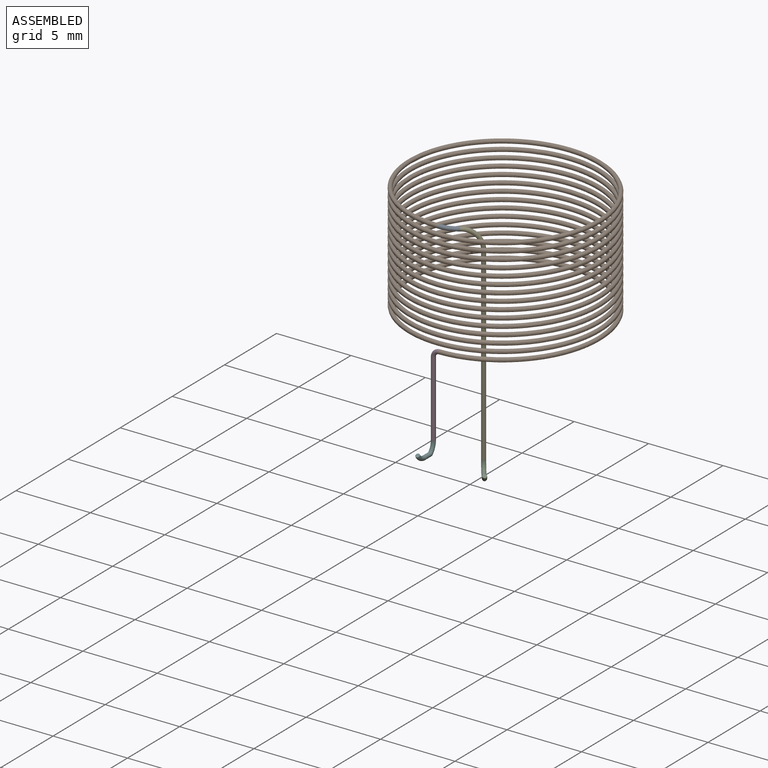
[diagram: assembled view]
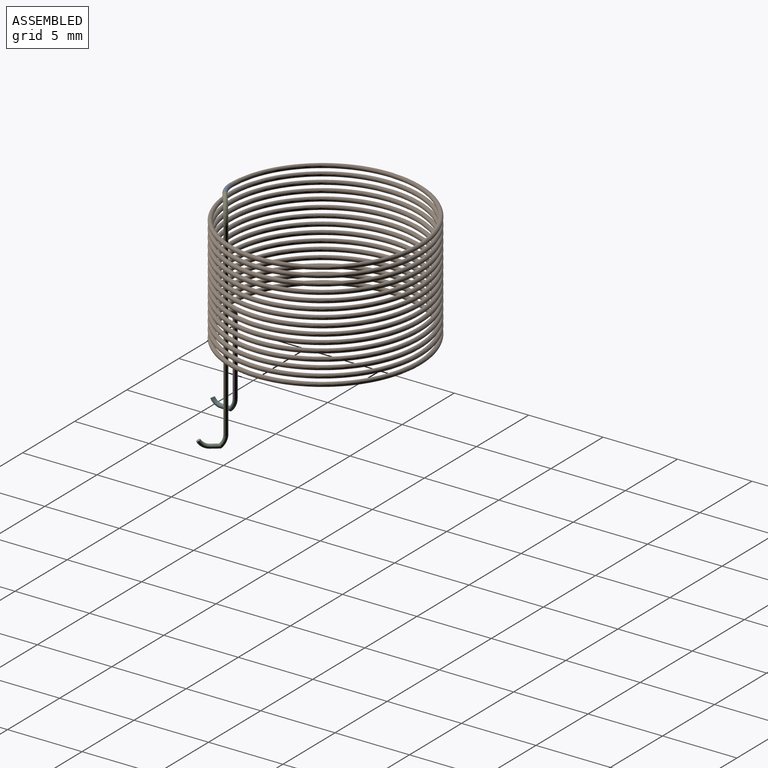
[diagram: assembled view, second angle]
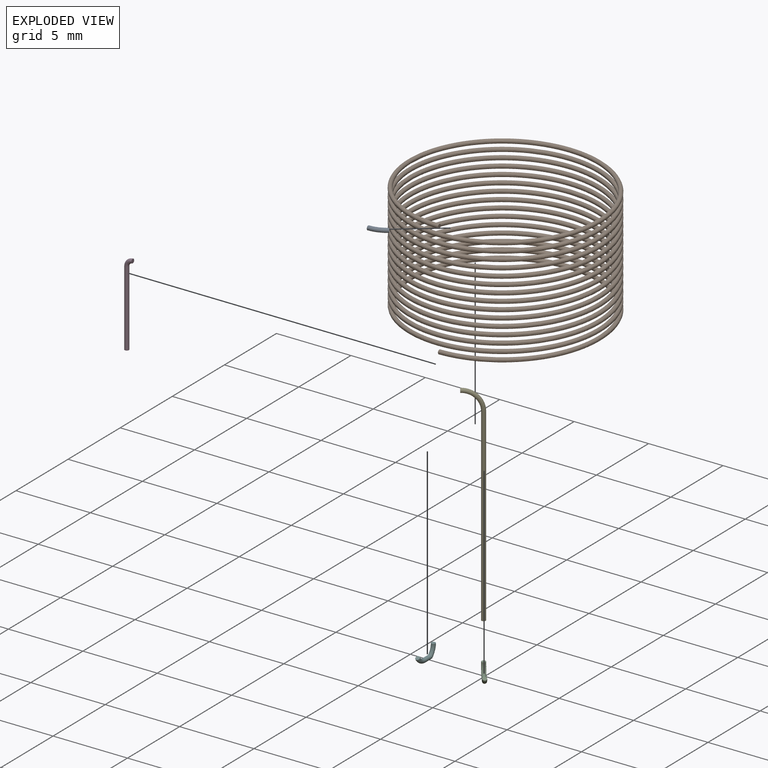
[diagram: exploded view]
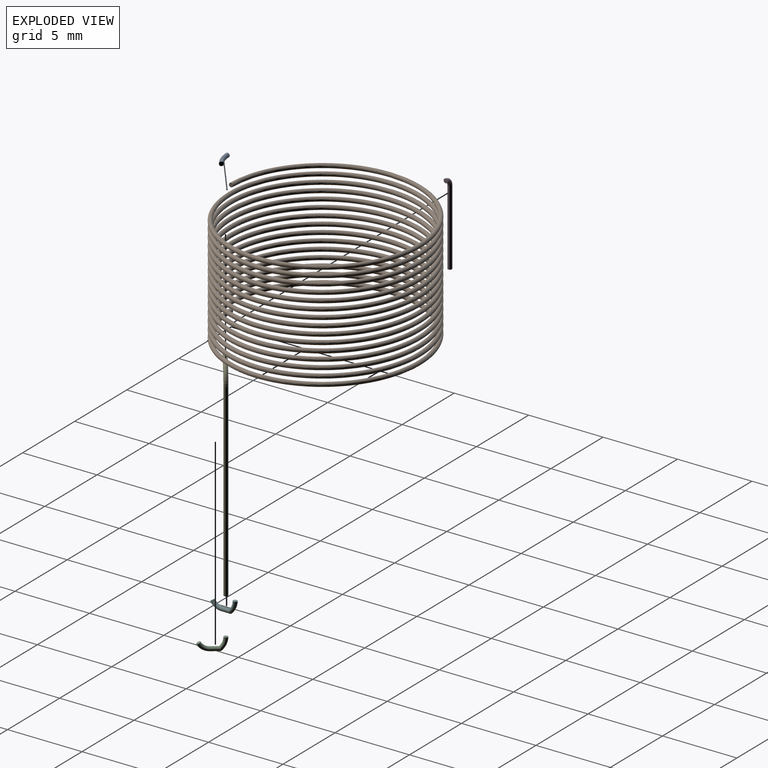
[diagram: exploded view, second angle]
ASSEMBLY  parts=6 mates=5
PART A: 3 faces, bbox 0.8x0.3x1.3 mm
  f0: plane 0.28x0.28mm, normal (0,0,-1), area 0.1mm2, adj f2
  f1: plane 0.28x0.22mm, normal (0.61,0,0.79), area 0.1mm2, adj f2
  f2: torus R=1.87mm, axis (0,1,0), area 1.1mm2, adj f0,f1
PART B: 3 faces, bbox 13x15x8.2 mm
  f0: plane 0.28x0.28mm, normal (0,-1,0), area 0.1mm2, adj f2
  f1: plane 0.28x0.28mm, normal (0,1,0), area 0.1mm2, adj f2
  f2: bspline ~14.99x12.98mm, area 523.8mm2, adj f0,f1
PART C: 5 faces, bbox 1.9x0.3x1 mm
  f0: plane 0.28x0.24mm, normal (0.48,0,-0.88), area 0.1mm2, adj f3
  f1: plane 0.32x0.32mm, normal (0,0,-1), area 0.1mm2, adj f4
  f2: cylinder r=0.14mm len=0.57mm, axis (1,0,0), area 0.5mm2, adj f3,f4
  f3: torus R=0.72mm, axis (0,1,0), area 0.7mm2, adj f0,f2
  f4: bspline ~0.82x0.55mm, area 0.6mm2, adj f1,f2
PART D: 4 faces, bbox 0.6x0.3x5.7 mm
  f0: plane 0.28x0.28mm, normal (1,0,0), area 0.1mm2, adj f1
  f1: torus R=0.4mm, axis (0,1,0), area 0.5mm2, adj f0,f2
  f2: cylinder r=0.14mm len=5.08mm, axis (0,0,1), area 4.5mm2, adj f1,f3
  f3: plane 0.28x0.28mm, normal (0,0,-1), area 0.1mm2, adj f2
PART E: 4 faces, bbox 1.5x0.3x14.2 mm
  f0: plane 0.28x0.28mm, normal (1,0,0), area 0.1mm2, adj f1
  f1: torus R=1.28mm, axis (0,1,0), area 1.8mm2, adj f0,f2
  f2: cylinder r=0.14mm len=12.7mm, axis (0,0,1), area 11.1mm2, adj f1,f3
  f3: plane 0.28x0.28mm, normal (0,0,-1), area 0.1mm2, adj f2
PART F: same geometry as C
PLACE A rot(axis=(0.58,0.58,0.58),120deg) t=(3.18,-1.76,7.25)mm
PLACE B rot(axis=(-0.71,0.71,0),180deg) t=(3.18,4.59,7.25)mm
PLACE C rot(axis=(-0.9,0.44,0),180deg) t=(5.34,-0.59,-6.73)mm
PLACE D t=(2.78,-1.76,-0.76)mm
PLACE E rot(axis=(0,0,-1),142.6deg) t=(5.34,-0.59,5.97)mm
PLACE F rot(axis=(0.71,-0.71,0),180deg) t=(2.78,-1.76,-5.84)mm
MATE fastened A.f0 <-> B.f0  axis (-1,0,0) through (3.18,-1.76,7.25)mm
MATE fastened C.f1 <-> E.f2  axis (0,0,1) through (5.34,-0.59,-6.73)mm
MATE fastened B.f1 <-> D.f0  axis (-1,0,0) through (3.18,-1.76,-0.37)mm
MATE fastened F.f1 <-> D.f2  axis (0,0,1) through (2.78,-1.76,-5.84)mm
MATE fastened E.f0 <-> A.f1  axis (-0.79,-0.61,0) through (4.32,-1.37,7.25)mm
